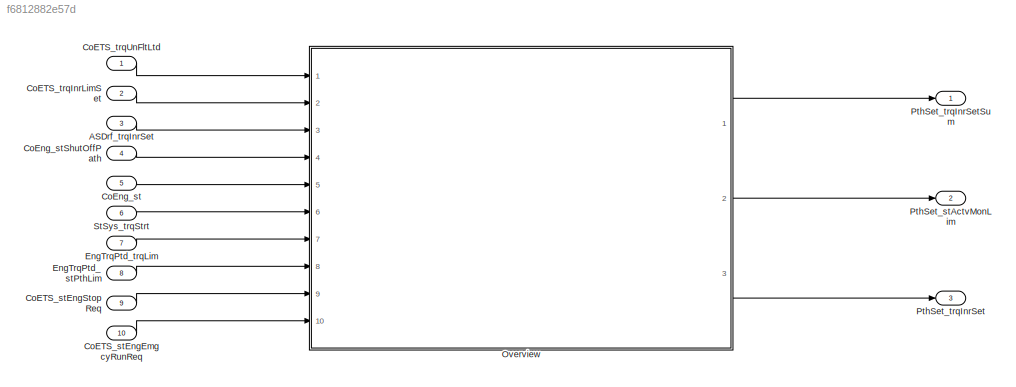
MODEL slx_f6812882e57d
KIND model
CONFIG AbsTol = auto
CONFIG EnableMultiTasking = off
CONFIG FixedStep = auto
CONFIG MaxStep = auto
CONFIG MinStep = auto
CONFIG RelTol = 1e-3
CONFIG SampleTimeConstraint = Unconstrained
CONFIG Solver = VariableStepAuto
CONFIG SolverName = VariableStepAuto
CONFIG StartTime = 0.0
CONFIG StopTime = 10.0
BLOCK [Inport] ASDrf_trqInrSet
  IconDisplay = Port number
  Port = 3
BLOCK [Inport] CoETS_stEngEmgcyRunReq
  IconDisplay = Port number
  Port = 10
BLOCK [Inport] CoETS_stEngStopReq
  IconDisplay = Port number
  Port = 9
BLOCK [Inport] CoETS_trqInrLimSet
  IconDisplay = Port number
  Port = 2
BLOCK [Inport] CoETS_trqUnFltLtd
  IconDisplay = Port number
BLOCK [Inport] CoEng_st
  IconDisplay = Port number
  Port = 5
BLOCK [Inport] CoEng_stShutOffPath
  IconDisplay = Port number
  Port = 4
BLOCK [Inport] EngTrqPtd_stPthLim
  IconDisplay = Port number
  Port = 8
BLOCK [Inport] EngTrqPtd_trqLim
  IconDisplay = Port number
  Port = 7
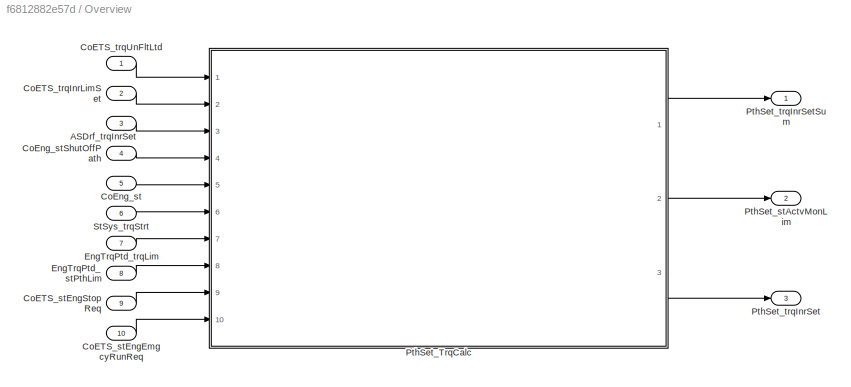
BLOCK [SubSystem] Overview
  Ports = [10, 3]
  RequestExecContextInheritance = off
BLOCK [Inport] Overview/ASDrf_trqInrSet
  IconDisplay = Port number
  Port = 3
BLOCK [Inport] Overview/CoETS_stEngEmgcyRunReq
  IconDisplay = Port number
  Port = 10
BLOCK [Inport] Overview/CoETS_stEngStopReq
  IconDisplay = Port number
  Port = 9
BLOCK [Inport] Overview/CoETS_trqInrLimSet
  IconDisplay = Port number
  Port = 2
BLOCK [Inport] Overview/CoETS_trqUnFltLtd
  IconDisplay = Port number
BLOCK [Inport] Overview/CoEng_st
  IconDisplay = Port number
  Port = 5
BLOCK [Inport] Overview/CoEng_stShutOffPath
  IconDisplay = Port number
  Port = 4
BLOCK [Inport] Overview/EngTrqPtd_stPthLim
  IconDisplay = Port number
  Port = 8
BLOCK [Inport] Overview/EngTrqPtd_trqLim
  IconDisplay = Port number
  Port = 7
BLOCK [ModelReference] Overview/PthSet_TrqCalc
  ModelNameDialog = PthSet_TrqCalc
  ModelReferenceVersion = 1.52
  Ports = [10, 3]
BLOCK [Outport] Overview/PthSet_stActvMonLim
  IconDisplay = Port number
  Port = 2
BLOCK [Outport] Overview/PthSet_trqInrSet
  IconDisplay = Port number
  Port = 3
BLOCK [Outport] Overview/PthSet_trqInrSetSum
  IconDisplay = Port number
BLOCK [Inport] Overview/StSys_trqStrt
  IconDisplay = Port number
  Port = 6
BLOCK [Outport] PthSet_stActvMonLim
  IconDisplay = Port number
  Port = 2
BLOCK [Outport] PthSet_trqInrSet
  IconDisplay = Port number
  Port = 3
BLOCK [Outport] PthSet_trqInrSetSum
  IconDisplay = Port number
BLOCK [Inport] StSys_trqStrt
  IconDisplay = Port number
  Port = 6
LINE ASDrf_trqInrSet:1 -> Overview:3
LINE CoETS_stEngEmgcyRunReq:1 -> Overview:10
LINE CoETS_stEngStopReq:1 -> Overview:9
LINE CoETS_trqInrLimSet:1 -> Overview:2
LINE CoETS_trqUnFltLtd:1 -> Overview:1
LINE CoEng_st:1 -> Overview:5
LINE CoEng_stShutOffPath:1 -> Overview:4
LINE EngTrqPtd_stPthLim:1 -> Overview:8
LINE EngTrqPtd_trqLim:1 -> Overview:7
LINE Overview/ASDrf_trqInrSet:1 -> Overview/PthSet_TrqCalc:3
LINE Overview/CoETS_stEngEmgcyRunReq:1 -> Overview/PthSet_TrqCalc:10
LINE Overview/CoETS_stEngStopReq:1 -> Overview/PthSet_TrqCalc:9
LINE Overview/CoETS_trqInrLimSet:1 -> Overview/PthSet_TrqCalc:2
LINE Overview/CoETS_trqUnFltLtd:1 -> Overview/PthSet_TrqCalc:1
LINE Overview/CoEng_st:1 -> Overview/PthSet_TrqCalc:5
LINE Overview/CoEng_stShutOffPath:1 -> Overview/PthSet_TrqCalc:4
LINE Overview/EngTrqPtd_stPthLim:1 -> Overview/PthSet_TrqCalc:8
LINE Overview/EngTrqPtd_trqLim:1 -> Overview/PthSet_TrqCalc:7
LINE Overview/PthSet_TrqCalc:1 -> Overview/PthSet_trqInrSetSum:1
LINE Overview/PthSet_TrqCalc:2 -> Overview/PthSet_stActvMonLim:1
LINE Overview/PthSet_TrqCalc:3 -> Overview/PthSet_trqInrSet:1
LINE Overview/StSys_trqStrt:1 -> Overview/PthSet_TrqCalc:6
LINE Overview:1 -> PthSet_trqInrSetSum:1
LINE Overview:2 -> PthSet_stActvMonLim:1
LINE Overview:3 -> PthSet_trqInrSet:1
LINE StSys_trqStrt:1 -> Overview:6
